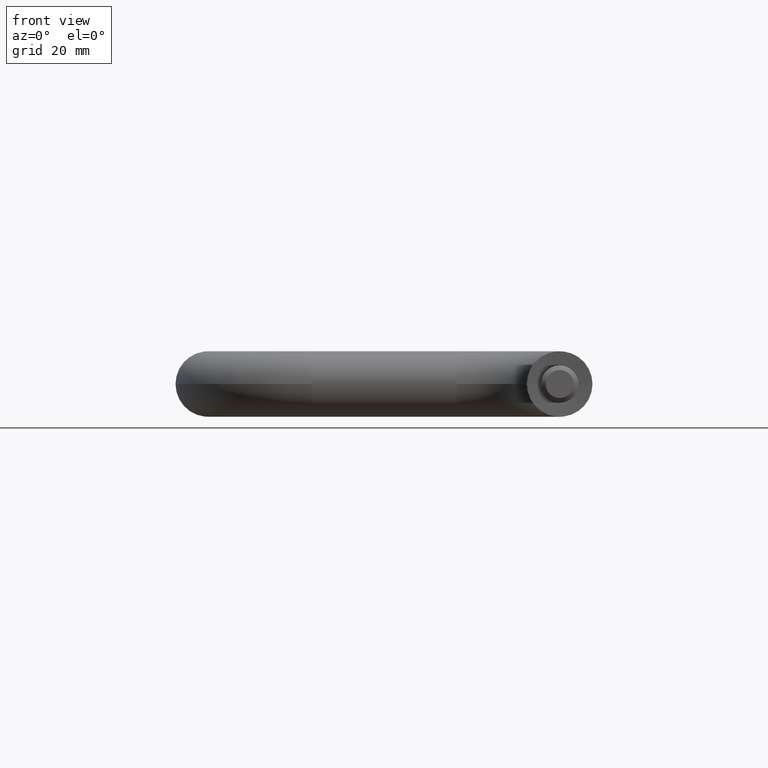
[diagram: clean part render]
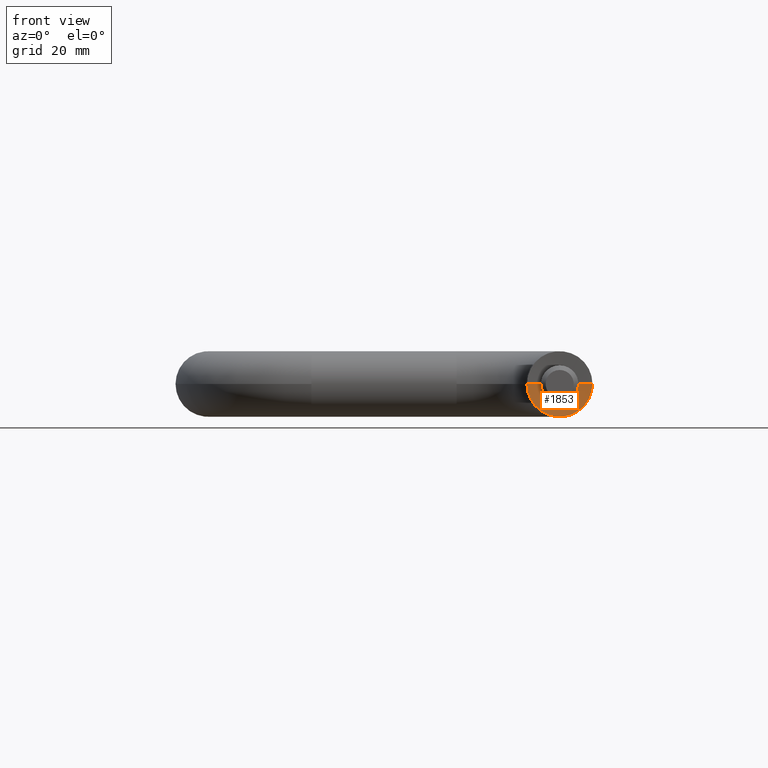
[diagram: same view with one face highlighted and labeled with its STEP entity id]
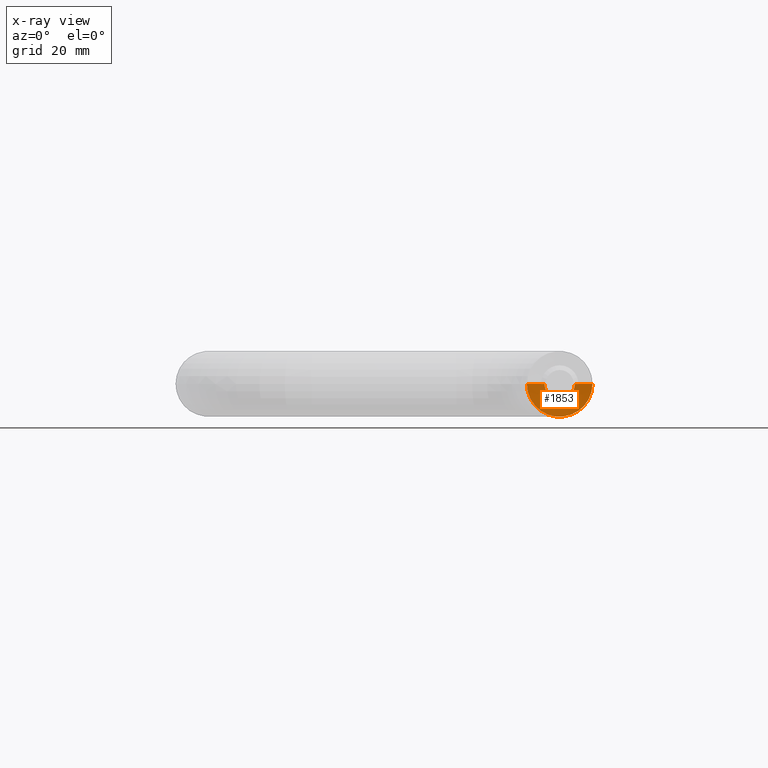
[diagram: x-ray of the same camera — body ghosted, the highlighted face saturated]
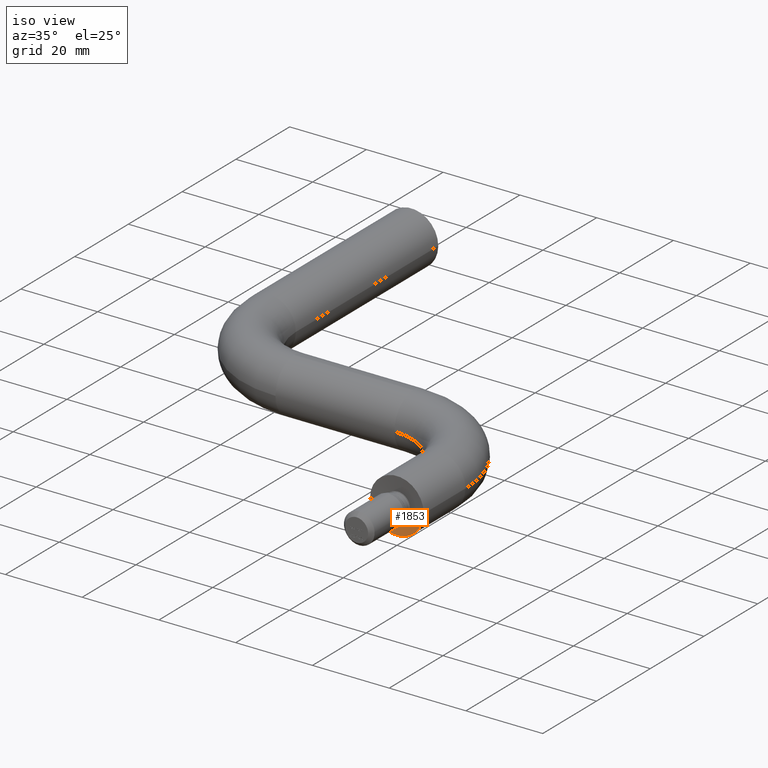
[diagram: same view with one face highlighted and labeled with its STEP entity id]
A machine part, front view. The second image highlights one B-rep face of the part: STEP entity #1853.
The next image is the same camera in x-ray: the body ghosted, the highlighted face saturated — about 0% of this face is hidden behind the body in this view.
A second angle (iso view) of the same face is appended — the face is thin or edge-on in the first view.
In plain terms, the highlighted conical surface has half-angle 85 deg.
Its self-contained STEP definition (entity closure, byte-faithful):
#278 = ORIENTED_EDGE ( 'NONE', *, *, #3543, .F. ) ;
#379 = CARTESIAN_POINT ( 'NONE',  ( 8.846355802193086300E-014, -999.3875793553185100, 0.0000000000000000000 ) ) ;
#781 = DIRECTION ( 'NONE',  ( 1.000000000000000000, 8.396307977435532400E-017, 0.0000000000000000000 ) ) ;
#924 = EDGE_CURVE ( 'NONE', #5818, #8716, #3470, .T. ) ;
#1221 = AXIS2_PLACEMENT_3D ( 'NONE', #11087, #6003, #12124 ) ;
#1853 = ADVANCED_FACE ( 'NONE', ( #10046 ), #4406, .F. ) ;
#2056 = DIRECTION ( 'NONE',  ( -0.9961946980917461000, -0.08715574274765157400, 1.219986648345620700E-016 ) ) ;
#2335 = VERTEX_POINT ( 'NONE', #3225 ) ;
#2951 = CARTESIAN_POINT ( 'NONE',  ( -7.000000000000009800, 0.0000000000000000000, 8.572527594031483100E-016 ) ) ;
#3225 = CARTESIAN_POINT ( 'NONE',  ( -3.228211064313085500, 0.3299887730850911700, 6.262972970457281700E-016 ) ) ;
#3409 = AXIS2_PLACEMENT_3D ( 'NONE', #379, #6483, #9670 ) ;
#3470 = LINE ( 'NONE', #6453, #9084 ) ;
#3543 = EDGE_CURVE ( 'NONE', #2335, #10375, #6997, .T. ) ;
#3852 = CARTESIAN_POINT ( 'NONE',  ( 7.000000000000009800, 1.192622389734054900E-015, 0.0000000000000000000 ) ) ;
#4141 = DIRECTION ( 'NONE',  ( 8.851776813055513600E-017, -1.000000000000000000, 0.0000000000000000000 ) ) ;
#4279 = CIRCLE ( 'NONE', #1221, 7.000000000000000000 ) ;
#4406 = CONICAL_SURFACE ( 'NONE', #3409, 11430.05230276222600, 1.483529864195186800 ) ;
#5536 = EDGE_CURVE ( 'NONE', #2335, #11047, #12327, .T. ) ;
#5818 = VERTEX_POINT ( 'NONE', #10620 ) ;
#5908 = ORIENTED_EDGE ( 'NONE', *, *, #924, .F. ) ;
#6003 = DIRECTION ( 'NONE',  ( -8.851776813055513600E-017, 1.000000000000000000, -0.0000000000000000000 ) ) ;
#6363 = CARTESIAN_POINT ( 'NONE',  ( 0.0000000000000000000, 0.3299887730850914500, -3.228211064313085500 ) ) ;
#6453 = CARTESIAN_POINT ( 'NONE',  ( -5.421010862427522200E-017, 0.6124206446814222100, 0.0000000000000000000 ) ) ;
#6483 = DIRECTION ( 'NONE',  ( 8.851776813055513600E-017, -1.000000000000000000, 0.0000000000000000000 ) ) ;
#6997 = CIRCLE ( 'NONE', #8476, 3.228211064313085500 ) ;
#7100 = CARTESIAN_POINT ( 'NONE',  ( -5.421010862427522200E-017, 0.6124206446814222100, 0.0000000000000000000 ) ) ;
#7238 = ORIENTED_EDGE ( 'NONE', *, *, #9124, .F. ) ;
#7308 = EDGE_LOOP ( 'NONE', ( #278, #10727, #7238, #5908, #11932 ) ) ;
#7322 = EDGE_CURVE ( 'NONE', #10375, #5818, #10218, .T. ) ;
#7552 = AXIS2_PLACEMENT_3D ( 'NONE', #13046, #11065, #781 ) ;
#8476 = AXIS2_PLACEMENT_3D ( 'NONE', #12342, #4141, #10217 ) ;
#8598 = VECTOR ( 'NONE', #2056, 1000.000000000000000 ) ;
#8716 = VERTEX_POINT ( 'NONE', #3852 ) ;
#9084 = VECTOR ( 'NONE', #9326, 1000.000000000000000 ) ;
#9124 = EDGE_CURVE ( 'NONE', #8716, #11047, #4279, .T. ) ;
#9326 = DIRECTION ( 'NONE',  ( 0.9961946980917461000, -0.08715574274765140700, 0.0000000000000000000 ) ) ;
#9670 = DIRECTION ( 'NONE',  ( 1.000000000000000000, 8.741873577614081100E-017, 0.0000000000000000000 ) ) ;
#10046 = FACE_OUTER_BOUND ( 'NONE', #7308, .T. ) ;
#10217 = DIRECTION ( 'NONE',  ( 1.000000000000000000, 8.396307977435532400E-017, 0.0000000000000000000 ) ) ;
#10218 = CIRCLE ( 'NONE', #7552, 3.228211064313085500 ) ;
#10375 = VERTEX_POINT ( 'NONE', #6363 ) ;
#10620 = CARTESIAN_POINT ( 'NONE',  ( 3.228211064313085500, 0.3299887730850917200, 0.0000000000000000000 ) ) ;
#10727 = ORIENTED_EDGE ( 'NONE', *, *, #5536, .T. ) ;
#11047 = VERTEX_POINT ( 'NONE', #2951 ) ;
#11065 = DIRECTION ( 'NONE',  ( 8.851776813055513600E-017, -1.000000000000000000, 0.0000000000000000000 ) ) ;
#11087 = CARTESIAN_POINT ( 'NONE',  ( -5.416677968589100800E-032, 6.505213034913026600E-016, 0.0000000000000000000 ) ) ;
#11932 = ORIENTED_EDGE ( 'NONE', *, *, #7322, .F. ) ;
#12124 = DIRECTION ( 'NONE',  ( -1.000000000000000000, -8.851776813055513600E-017, 0.0000000000000000000 ) ) ;
#12327 = LINE ( 'NONE', #7100, #8598 ) ;
#12342 = CARTESIAN_POINT ( 'NONE',  ( -2.920986970163249500E-017, 0.3299887730850914500, 0.0000000000000000000 ) ) ;
#13046 = CARTESIAN_POINT ( 'NONE',  ( -2.920986970163249500E-017, 0.3299887730850914500, 0.0000000000000000000 ) ) ;